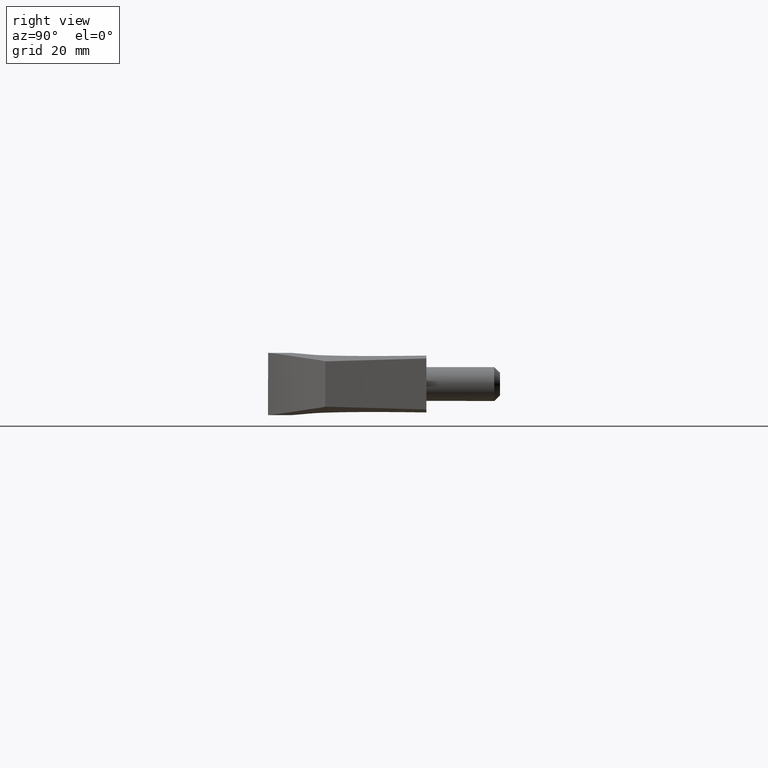
[diagram: clean part render]
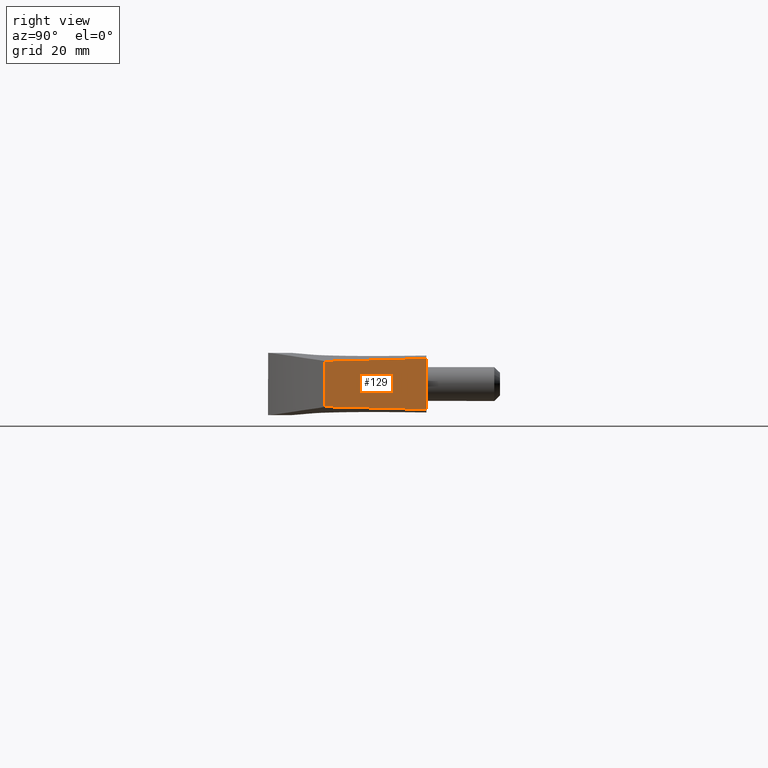
[diagram: same view with one face highlighted and labeled with its STEP entity id]
A machine part, right view. The second image highlights one B-rep face of the part: STEP entity #129.
In plain terms, the highlighted planar face has unit normal (-0.9965, 0.0836, 0).
Its self-contained STEP definition (entity closure, byte-faithful):
#129=ADVANCED_FACE('',(#228),#227,.F.);
#227=PLANE('',#444);
#228=FACE_OUTER_BOUND('',#445,.T.);
#441=CARTESIAN_POINT('',(6.11502988880E+01,-5.40000000000E+00,-1.78818674312E+00));
#442=DIRECTION('',(-9.96500259861E-01,0.00000000000E+00,-8.35896650146E-02));
#443=DIRECTION('',(-8.35896650146E-02,0.00000000000E+00,9.96500259861E-01));
#444=AXIS2_PLACEMENT_3D('',#441,#442,#443);
#445=EDGE_LOOP('',(#1436,#1437,#1438,#1439));
#1436=ORIENTED_EDGE('',*,*,#1547,.F.);
#1437=ORIENTED_EDGE('',*,*,#1548,.T.);
#1438=ORIENTED_EDGE('',*,*,#1542,.T.);
#1439=ORIENTED_EDGE('',*,*,#1549,.T.);
#1542=EDGE_CURVE('',#1772,#1765,#1773,.T.);
#1547=EDGE_CURVE('',#1806,#1807,#1808,.T.);
#1548=EDGE_CURVE('',#1806,#1772,#1814,.T.);
#1549=EDGE_CURVE('',#1765,#1807,#1820,.T.);
#1765=VERTEX_POINT('',#2141);
#1772=VERTEX_POINT('',#2147);
#1773=LINE('',#2148,#2149);
#1806=VERTEX_POINT('',#2171);
#1807=VERTEX_POINT('',#2172);
#1808=LINE('',#2173,#2174);
#1814=LINE('',#2176,#2177);
#1820=LINE('',#2179,#2180);
#2141=CARTESIAN_POINT('',(6.10003000000E+01,4.50000000000E+00,-4.44089200000E-13));
#2147=CARTESIAN_POINT('',(6.10003000000E+01,-4.50000000000E+00,-1.55431200000E-12));
#2148=CARTESIAN_POINT('',(6.10003000000E+01,-4.50000000000E+00,-1.55431200000E-12));
#2149=VECTOR('',#2150,9.00000000000E+00);
#2150=DIRECTION('',(1.11318361936E-13,1.00000000000E+00,1.23358088889E-13));
#2171=CARTESIAN_POINT('',(5.95003111203E+01,-4.00000370677E+00,1.78818674312E+01));
#2172=CARTESIAN_POINT('',(5.95003111203E+01,4.00000370677E+00,1.78818674312E+01));
#2173=CARTESIAN_POINT('',(5.95003111203E+01,-4.00000370677E+00,1.78818674312E+01));
#2174=VECTOR('',#2175,8.00000741353E+00);
#2175=DIRECTION('',(0.00000000000E+00,1.00000000000E+00,-6.21724317643E-15));
#2176=CARTESIAN_POINT('',(5.95003111203E+01,-4.00000370677E+00,1.78818674312E+01));
#2177=VECTOR('',#2178,1.79516335123E+01);
#2178=DIRECTION('',(8.35572360963E-02,-2.78524120321E-02,-9.96113663916E-01));
#2179=CARTESIAN_POINT('',(6.10003000000E+01,4.50000000000E+00,-4.44089200000E-13));
#2180=VECTOR('',#2181,1.79516335123E+01);
#2181=DIRECTION('',(-8.35572360964E-02,-2.78524120321E-02,9.96113663916E-01));